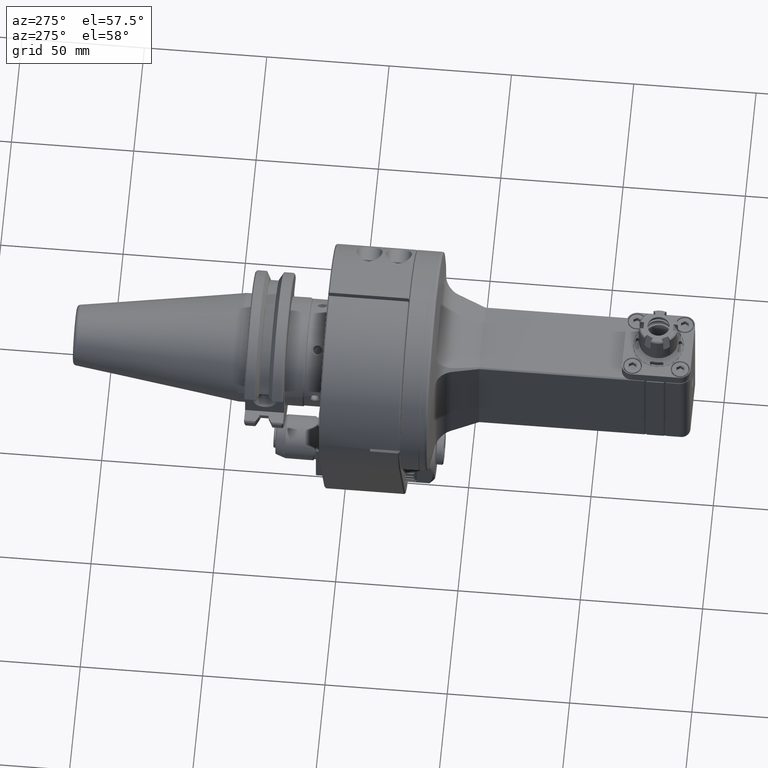
[diagram: clean part render]
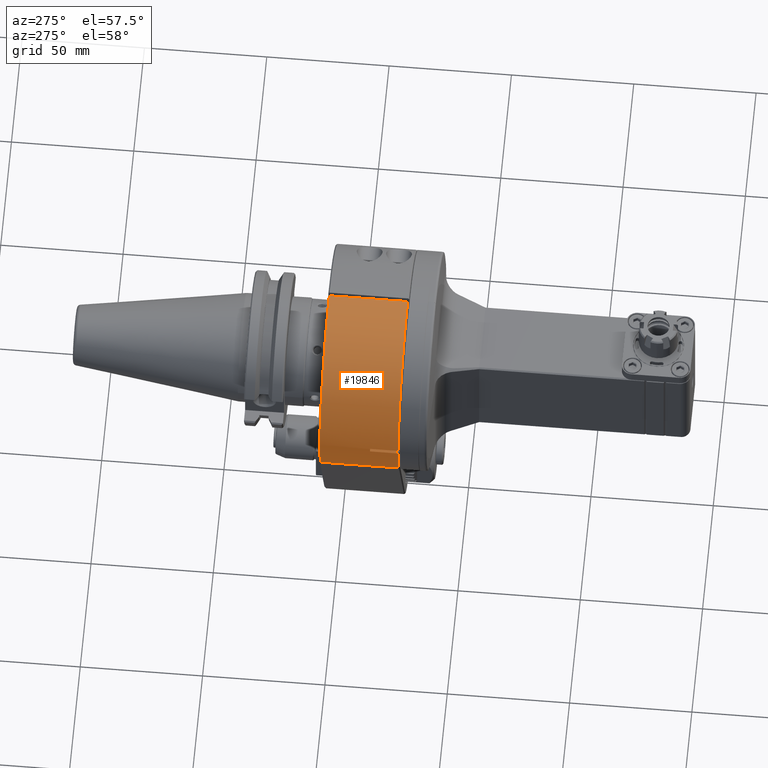
[diagram: same view with one face highlighted and labeled with its STEP entity id]
A machine part, auxiliary view. The second image highlights one B-rep face of the part: STEP entity #19846.
In plain terms, the highlighted cylindrical surface (partial cylindrical patch) has radius 45 mm, axis along (0, 1, 0).
Its self-contained STEP definition (entity closure, byte-faithful):
#869=LINE('',#30069,#2671);
#871=LINE('',#30083,#2673);
#875=LINE('',#30094,#2677);
#893=LINE('',#30245,#2695);
#2671=VECTOR('',#23769,10.);
#2673=VECTOR('',#23781,11.49999180783);
#2677=VECTOR('',#23787,10.);
#2695=VECTOR('',#23851,32.0000477155809);
#4284=CYLINDRICAL_SURFACE('',#21273,45.);
#4707=FACE_OUTER_BOUND('',#5892,.T.);
#5892=EDGE_LOOP('',(#13582,#13583,#13584,#13585,#13586,#13587,#13588,#13589));
#7336=CIRCLE('',#21248,45.);
#7337=CIRCLE('',#21252,45.);
#7349=CIRCLE('',#21272,45.);
#7350=CIRCLE('',#21274,45.);
#8382=VERTEX_POINT('',#30064);
#8383=VERTEX_POINT('',#30068);
#8386=VERTEX_POINT('',#30076);
#8387=VERTEX_POINT('',#30082);
#8389=VERTEX_POINT('',#30088);
#8390=VERTEX_POINT('',#30092);
#8391=VERTEX_POINT('',#30096);
#8415=VERTEX_POINT('',#30241);
#10396=EDGE_CURVE('',#8383,#8382,#869,.T.);
#10400=EDGE_CURVE('',#8386,#8383,#7336,.T.);
#10402=EDGE_CURVE('',#8386,#8387,#871,.T.);
#10407=EDGE_CURVE('',#8389,#8390,#875,.T.);
#10408=EDGE_CURVE('',#8389,#8391,#7337,.T.);
#10441=EDGE_CURVE('',#8415,#8382,#7349,.T.);
#10443=EDGE_CURVE('',#8391,#8415,#893,.T.);
#10444=EDGE_CURVE('',#8390,#8387,#7350,.T.);
#13582=ORIENTED_EDGE('',*,*,#10441,.F.);
#13583=ORIENTED_EDGE('',*,*,#10443,.F.);
#13584=ORIENTED_EDGE('',*,*,#10408,.F.);
#13585=ORIENTED_EDGE('',*,*,#10407,.T.);
#13586=ORIENTED_EDGE('',*,*,#10444,.T.);
#13587=ORIENTED_EDGE('',*,*,#10402,.F.);
#13588=ORIENTED_EDGE('',*,*,#10400,.T.);
#13589=ORIENTED_EDGE('',*,*,#10396,.T.);
#19846=ADVANCED_FACE('',(#4707),#4284,.T.);
#21248=AXIS2_PLACEMENT_3D('',#30077,#23777,#23778);
#21252=AXIS2_PLACEMENT_3D('',#30097,#23790,#23791);
#21272=AXIS2_PLACEMENT_3D('',#30242,#23846,#23847);
#21273=AXIS2_PLACEMENT_3D('',#30244,#23849,#23850);
#21274=AXIS2_PLACEMENT_3D('',#30246,#23852,#23853);
#23769=DIRECTION('',(0.,1.,0.));
#23777=DIRECTION('center_axis',(0.,1.,0.));
#23778=DIRECTION('ref_axis',(-0.999758397003229,0.,0.0219806192254606));
#23781=DIRECTION('',(-9.03366988345497E-8,0.999999999999996,1.98611079806799E-9));
#23787=DIRECTION('',(0.,1.,0.));
#23790=DIRECTION('center_axis',(0.,-1.,0.));
#23791=DIRECTION('ref_axis',(1.,0.,0.));
#23846=DIRECTION('center_axis',(0.,1.,0.));
#23847=DIRECTION('ref_axis',(-0.923076923076914,0.,-0.384615384615406));
#23849=DIRECTION('center_axis',(0.,1.,0.));
#23850=DIRECTION('ref_axis',(-0.836644062832863,0.,0.547746941686141));
#23851=DIRECTION('',(3.01341495130291E-6,0.999999999994671,1.25558957236896E-6));
#23852=DIRECTION('center_axis',(0.,1.,0.));
#23853=DIRECTION('ref_axis',(-0.999758397003229,0.,-0.0219806192254506));
#30064=CARTESIAN_POINT('',(-0.75,134.4997729971,44.99374956591));
#30068=CARTESIAN_POINT('',(-0.749999884785042,102.500027675965,44.9937495601984));
#30069=CARTESIAN_POINT('',(-0.75,102.,44.9937495659119));
#30076=CARTESIAN_POINT('',(-44.9891273893912,102.500027444128,0.989127617664011));
#30077=CARTESIAN_POINT('Origin',(8.393287066166E-14,102.5000276939,-6.125669333869E-13));
#30082=CARTESIAN_POINT('',(-44.98912786515,114.,0.9891278651453));
#30083=CARTESIAN_POINT('',(-44.98912682627,102.5000081922,0.9891278423051));
#30088=CARTESIAN_POINT('',(-44.9891278661256,102.499391285831,-0.989127867354119));
#30092=CARTESIAN_POINT('',(-44.98912786515,114.,-0.9891278651453));
#30094=CARTESIAN_POINT('',(-44.9891278651453,102.,-0.989127865145143));
#30096=CARTESIAN_POINT('',(-41.5383589672637,102.499720379386,-17.3076496018672));
#30097=CARTESIAN_POINT('Origin',(0.,102.499391283546,0.));
#30241=CARTESIAN_POINT('',(-41.5384630990126,134.499882417202,-17.3076929579203));
#30242=CARTESIAN_POINT('Origin',(0.,134.4997729971,0.));
#30244=CARTESIAN_POINT('Origin',(0.,102.,0.));
#30245=CARTESIAN_POINT('',(-41.53853176367,102.4999239095,-17.30772160037));
#30246=CARTESIAN_POINT('Origin',(0.,114.,0.));